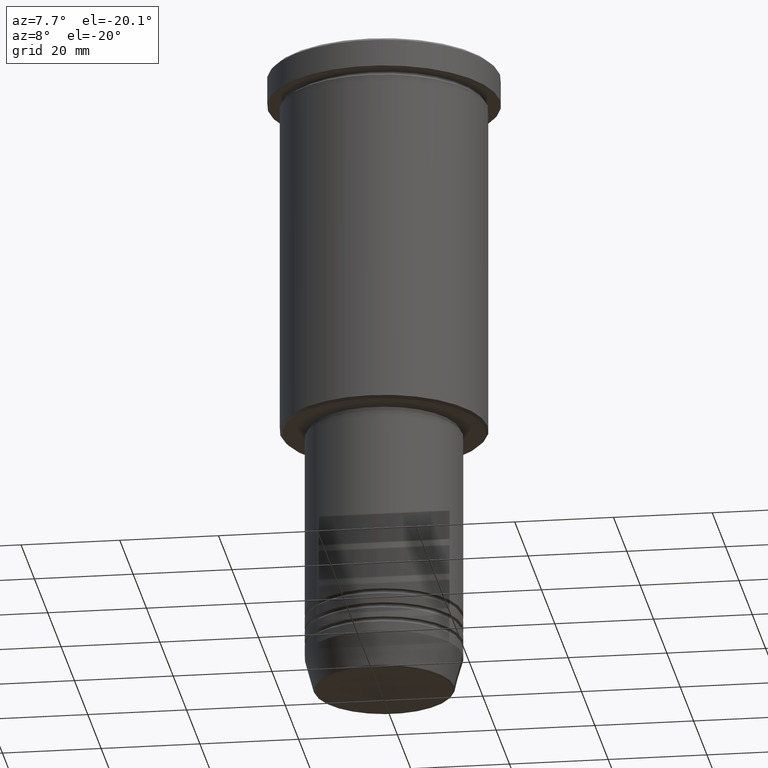
[diagram: clean part render]
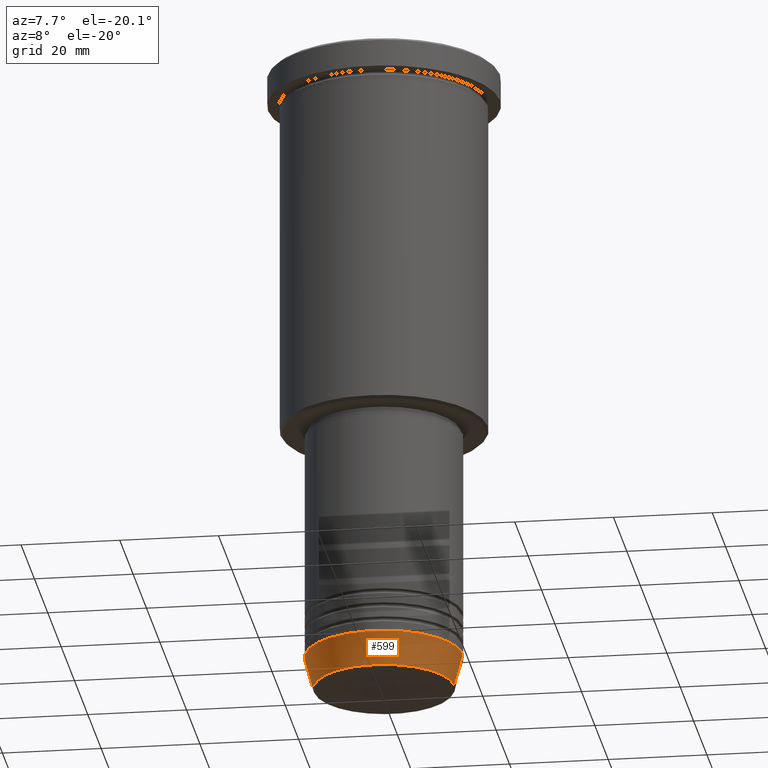
[diagram: same view with one face highlighted and labeled with its STEP entity id]
A machine part, auxiliary view. The second image highlights one B-rep face of the part: STEP entity #599.
In plain terms, the highlighted conical surface has half-angle 15 deg.
Its self-contained STEP definition (entity closure, byte-faithful):
#6 = ORIENTED_EDGE ( 'NONE', *, *, #587, .T. ) ;
#13 = VERTEX_POINT ( 'NONE', #522 ) ;
#46 = LINE ( 'NONE', #228, #612 ) ;
#101 = DIRECTION ( 'NONE',  ( 1.000000000000000000, 0.000000000000000000, 0.000000000000000000 ) ) ;
#146 = VERTEX_POINT ( 'NONE', #262 ) ;
#196 = ORIENTED_EDGE ( 'NONE', *, *, #940, .F. ) ;
#209 = DIRECTION ( 'NONE',  ( -0.000000000000000000, -0.000000000000000000, 1.000000000000000000 ) ) ;
#228 = CARTESIAN_POINT ( 'NONE',  ( -16.00000000000000000, 1.959434878635765131E-15, -124.0000000000000000 ) ) ;
#262 = CARTESIAN_POINT ( 'NONE',  ( -16.00000000000000000, 1.959434878635765131E-15, -124.0000000000000000 ) ) ;
#294 = AXIS2_PLACEMENT_3D ( 'NONE', #674, #209, #851 ) ;
#302 = CARTESIAN_POINT ( 'NONE',  ( -14.22365507213718949, 1.850665122131323731E-15, -130.6294095225512706 ) ) ;
#381 = LINE ( 'NONE', #741, #918 ) ;
#407 = CIRCLE ( 'NONE', #294, 14.22365507213718949 ) ;
#432 = FACE_OUTER_BOUND ( 'NONE', #1102, .T. ) ;
#482 = AXIS2_PLACEMENT_3D ( 'NONE', #1167, #529, #684 ) ;
#522 = CARTESIAN_POINT ( 'NONE',  ( 16.00000000000000000, 0.000000000000000000, -124.0000000000000000 ) ) ;
#529 = DIRECTION ( 'NONE',  ( -0.000000000000000000, -0.000000000000000000, 1.000000000000000000 ) ) ;
#550 = ORIENTED_EDGE ( 'NONE', *, *, #1085, .F. ) ;
#567 = CARTESIAN_POINT ( 'NONE',  ( 0.000000000000000000, 0.000000000000000000, -124.0000000000000000 ) ) ;
#581 = ORIENTED_EDGE ( 'NONE', *, *, #1139, .T. ) ;
#587 = EDGE_CURVE ( 'NONE', #1019, #13, #381, .T. ) ;
#599 = ADVANCED_FACE ( 'NONE', ( #432 ), #1037, .T. ) ;
#612 = VECTOR ( 'NONE', #859, 1000.000000000000000 ) ;
#649 = DIRECTION ( 'NONE',  ( 0.2588190451025213501, 0.000000000000000000, 0.9659258262890680902 ) ) ;
#674 = CARTESIAN_POINT ( 'NONE',  ( 0.000000000000000000, 0.000000000000000000, -130.6294095225512706 ) ) ;
#684 = DIRECTION ( 'NONE',  ( 1.000000000000000000, 0.000000000000000000, 0.000000000000000000 ) ) ;
#741 = CARTESIAN_POINT ( 'NONE',  ( 16.00000000000000000, 0.000000000000000000, -124.0000000000000000 ) ) ;
#851 = DIRECTION ( 'NONE',  ( 1.000000000000000000, 0.000000000000000000, 0.000000000000000000 ) ) ;
#859 = DIRECTION ( 'NONE',  ( -0.2588190451025213501, 3.169619151431772337E-17, 0.9659258262890680902 ) ) ;
#878 = VERTEX_POINT ( 'NONE', #302 ) ;
#898 = CIRCLE ( 'NONE', #1056, 16.00000000000000000 ) ;
#918 = VECTOR ( 'NONE', #649, 1000.000000000000000 ) ;
#936 = DIRECTION ( 'NONE',  ( -0.000000000000000000, -0.000000000000000000, 1.000000000000000000 ) ) ;
#940 = EDGE_CURVE ( 'NONE', #146, #13, #898, .T. ) ;
#1019 = VERTEX_POINT ( 'NONE', #1026 ) ;
#1026 = CARTESIAN_POINT ( 'NONE',  ( 14.22365507213718949, 0.000000000000000000, -130.6294095225512706 ) ) ;
#1037 = CONICAL_SURFACE ( 'NONE', #482, 16.00000000000000000, 0.2617993877991500740 ) ;
#1056 = AXIS2_PLACEMENT_3D ( 'NONE', #567, #936, #101 ) ;
#1085 = EDGE_CURVE ( 'NONE', #878, #146, #46, .T. ) ;
#1102 = EDGE_LOOP ( 'NONE', ( #550, #581, #6, #196 ) ) ;
#1139 = EDGE_CURVE ( 'NONE', #878, #1019, #407, .T. ) ;
#1167 = CARTESIAN_POINT ( 'NONE',  ( 0.000000000000000000, 0.000000000000000000, -124.0000000000000000 ) ) ;